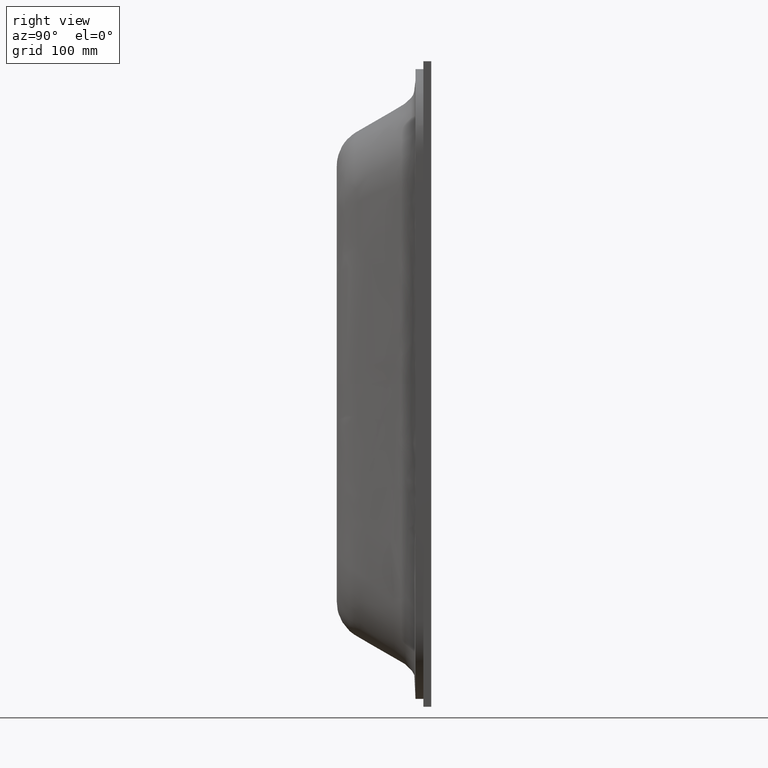
[diagram: clean part render]
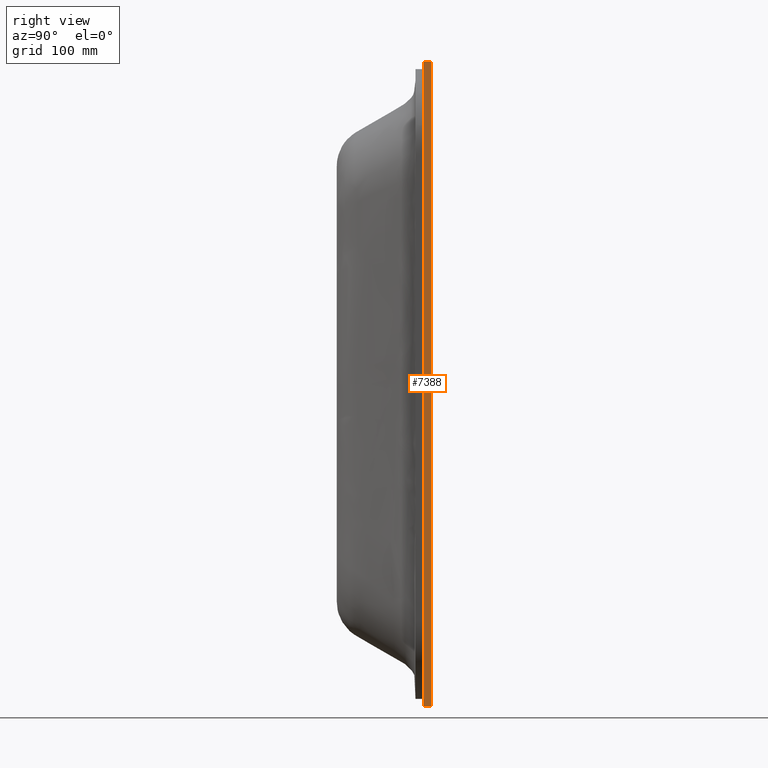
[diagram: same view with one face highlighted and labeled with its STEP entity id]
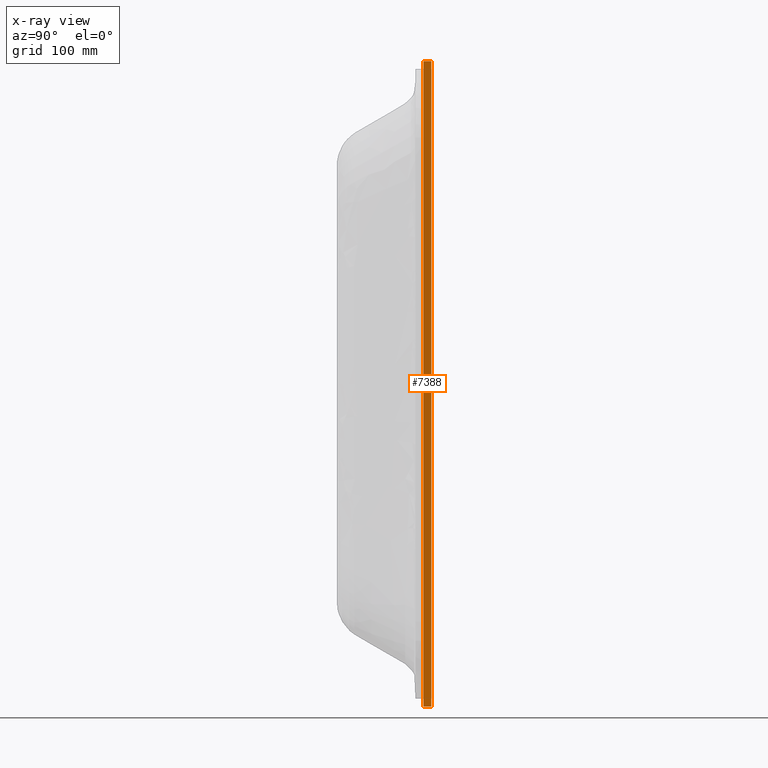
[diagram: x-ray of the same camera — body ghosted, the highlighted face saturated]
A machine part, right view. The second image highlights one B-rep face of the part: STEP entity #7388.
The next image is the same camera in x-ray: the body ghosted, the highlighted face saturated — about 0% of this face is hidden behind the body in this view.
In plain terms, the highlighted planar face has unit normal (-1, 0, -0).
Its self-contained STEP definition (entity closure, byte-faithful):
#516 = EDGE_CURVE ( 'NONE', #8219, #3050, #10406, .T. ) ;
#2432 = VECTOR ( 'NONE', #4361, 1000.000000000000000 ) ;
#2970 = CARTESIAN_POINT ( 'NONE',  ( 210.0000000000002000, 110.0000000000021700, -410.0000000000001100 ) ) ;
#3050 = VERTEX_POINT ( 'NONE', #3127 ) ;
#3127 = CARTESIAN_POINT ( 'NONE',  ( 210.0000000000001400, 119.9999999999999000, 410.0000000000005100 ) ) ;
#3335 = DIRECTION ( 'NONE',  ( -5.551115123125778800E-016, -1.000000000000000000, 0.0000000000000000000 ) ) ;
#3344 = DIRECTION ( 'NONE',  ( -1.000000000000000000, 5.551115123125778800E-016, -6.769652589177624600E-017 ) ) ;
#3459 = CARTESIAN_POINT ( 'NONE',  ( 210.0000000000001400, 109.9999999999999000, 410.0000000000005100 ) ) ;
#3480 = CARTESIAN_POINT ( 'NONE',  ( 210.0000000000002000, 110.0000000000021700, -410.0000000000001100 ) ) ;
#3531 = PLANE ( 'NONE',  #10328 ) ;
#3577 = DIRECTION ( 'NONE',  ( 5.551115123125777800E-016, 1.000000000000000000, 2.775557561562889400E-015 ) ) ;
#3719 = FACE_OUTER_BOUND ( 'NONE', #7827, .T. ) ;
#3837 = CARTESIAN_POINT ( 'NONE',  ( 210.0000000000001400, 109.9999999999999000, 410.0000000000005100 ) ) ;
#3953 = CARTESIAN_POINT ( 'NONE',  ( 210.0000000000002000, 120.0000000000021700, -410.0000000000001100 ) ) ;
#4179 = DIRECTION ( 'NONE',  ( 5.551115123125777800E-016, 1.000000000000000000, 2.775557561562889400E-015 ) ) ;
#4223 = VECTOR ( 'NONE', #3577, 1000.000000000000000 ) ;
#4283 = CARTESIAN_POINT ( 'NONE',  ( 210.0000000000001400, 109.9999999999999000, 410.0000000000005100 ) ) ;
#4361 = DIRECTION ( 'NONE',  ( -6.769652589177778700E-017, -2.775557561562889400E-015, 1.000000000000000000 ) ) ;
#4412 = CARTESIAN_POINT ( 'NONE',  ( 210.0000000000001400, 109.9999999999999000, 410.0000000000005100 ) ) ;
#4666 = VECTOR ( 'NONE', #4179, 1000.000000000000000 ) ;
#5431 = ORIENTED_EDGE ( 'NONE', *, *, #9570, .T. ) ;
#6665 = LINE ( 'NONE', #4412, #2432 ) ;
#6749 = EDGE_CURVE ( 'NONE', #10681, #9270, #6665, .T. ) ;
#6882 = LINE ( 'NONE', #4283, #4666 ) ;
#6998 = EDGE_CURVE ( 'NONE', #9270, #3050, #6882, .T. ) ;
#7388 = ADVANCED_FACE ( 'NONE', ( #3719 ), #3531, .F. ) ;
#7563 = VECTOR ( 'NONE', #9029, 1000.000000000000000 ) ;
#7827 = EDGE_LOOP ( 'NONE', ( #9291, #10144, #10222, #5431 ) ) ;
#8219 = VERTEX_POINT ( 'NONE', #3953 ) ;
#8994 = CARTESIAN_POINT ( 'NONE',  ( 210.0000000000001400, 119.9999999999999000, 410.0000000000005100 ) ) ;
#9029 = DIRECTION ( 'NONE',  ( -6.769652589177778700E-017, -2.775557561562889400E-015, 1.000000000000000000 ) ) ;
#9245 = LINE ( 'NONE', #3480, #4223 ) ;
#9270 = VERTEX_POINT ( 'NONE', #3837 ) ;
#9291 = ORIENTED_EDGE ( 'NONE', *, *, #516, .T. ) ;
#9570 = EDGE_CURVE ( 'NONE', #10681, #8219, #9245, .T. ) ;
#10144 = ORIENTED_EDGE ( 'NONE', *, *, #6998, .F. ) ;
#10222 = ORIENTED_EDGE ( 'NONE', *, *, #6749, .F. ) ;
#10328 = AXIS2_PLACEMENT_3D ( 'NONE', #3459, #3344, #3335 ) ;
#10406 = LINE ( 'NONE', #8994, #7563 ) ;
#10681 = VERTEX_POINT ( 'NONE', #2970 ) ;